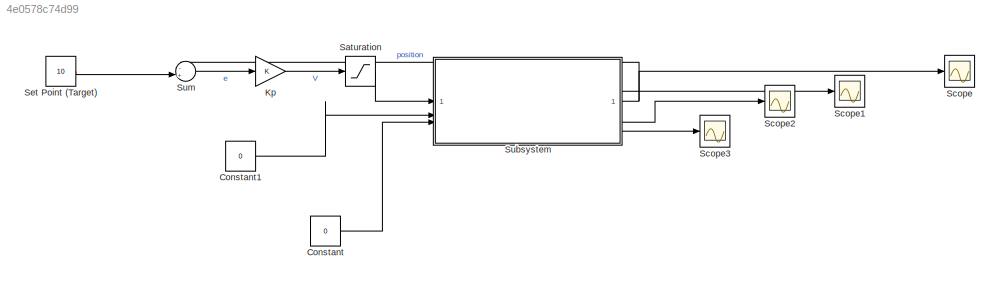
MODEL slx_4e0578c74d99
KIND model
CONFIG AbsTol = auto
CONFIG EnableMultiTasking = off
CONFIG FixedStep = auto
CONFIG InitFcn = %%%%%%%%%%%%%%%%%%%%%%%%%%%%%%%%%%%%%%%%%%%%%%%%%\n%motor parameters\n%we dont know these yet\nJ = 1e-6; %intertia [kg * m^2]\nBm = 1e-6; %kinetic friction [N * m * s]\n\n%from motor datasheet\nKm = 0.011; %motor constant (back emf constant = torque constant)\nRw = 1.17; %motor electric resistance in ohms\nLw = 0.58E-3; %motor inductance in ohms\n\n\n%admittance controller params\n\nK = 1;\nB = 1;\nD = 1;\nM = J;\n...<+52ch>
CONFIG MaxStep = auto
CONFIG MinStep = auto
CONFIG RelTol = 1e-3
CONFIG SampleTimeConstraint = Unconstrained
CONFIG SolverName = VariableStepAuto
CONFIG StartTime = 0.0
CONFIG StopTime = 1
BLOCK [Constant] Constant
  Value = 0
BLOCK [Constant] Constant1
  Value = 0
BLOCK [Gain] Kp
BLOCK [Saturate] Saturation
  LowerLimit = -12
  UpperLimit = 12
BLOCK [Scope] Scope
  Floating = off
  NumInputPorts = 1
  ScopeSpecificationString = Simulink.scopes.TimeScopeBlockCfg('CurrentConfiguration', extmgr.ConfigurationSet(extmgr.Configuration('Core','General UI',true),extmgr.Configuration('Core','Source UI',true),extmgr.Configuration('Sources','WiredSimulink',true),extmgr.Configuration('Visuals','Time Domain',true,'SerializedDisplays',{struct('MinYLimReal','-1.42736','MaxYLimReal','12.84621','YLabelReal','','MinYLimMag','0.00000','Max...<+1361ch>
BLOCK [Scope] Scope1
  Floating = off
  NumInputPorts = 1
  ScopeSpecificationString = Simulink.scopes.TimeScopeBlockCfg('CurrentConfiguration', extmgr.ConfigurationSet(extmgr.Configuration('Core','General UI',true),extmgr.Configuration('Core','Source UI',true),extmgr.Configuration('Sources','WiredSimulink',true,'DataLoggingVariableName','ScopeData1'),extmgr.Configuration('Visuals','Time Domain',true,'SerializedDisplays',{struct('MinYLimReal','-149.56963','MaxYLimReal','604.06701','...<+1431ch>
BLOCK [Scope] Scope2
  Floating = off
  NumInputPorts = 1
  ScopeSpecificationString = Simulink.scopes.TimeScopeBlockCfg('CurrentConfiguration', extmgr.ConfigurationSet(extmgr.Configuration('Core','General UI',true),extmgr.Configuration('Core','Source UI',true),extmgr.Configuration('Sources','WiredSimulink',true,'DataLoggingVariableName','ScopeData2'),extmgr.Configuration('Visuals','Time Domain',true,'SerializedDisplays',{struct('MinYLimReal','-0.04162','MaxYLimReal','0.09713','YLab...<+1399ch>
BLOCK [Scope] Scope3
  Floating = off
  NumInputPorts = 1
  ScopeSpecificationString = Simulink.scopes.TimeScopeBlockCfg('CurrentConfiguration', extmgr.ConfigurationSet(extmgr.Configuration('Core','General UI',true),extmgr.Configuration('Core','Source UI',true),extmgr.Configuration('Sources','WiredSimulink',true,'DataLoggingVariableName','ScopeData3'),extmgr.Configuration('Visuals','Time Domain',true,'SerializedDisplays',{struct('MinYLimReal','-0.04162','MaxYLimReal','0.09713','YLab...<+1402ch>
BLOCK [Constant] Set Point (Target)
  Value = 10
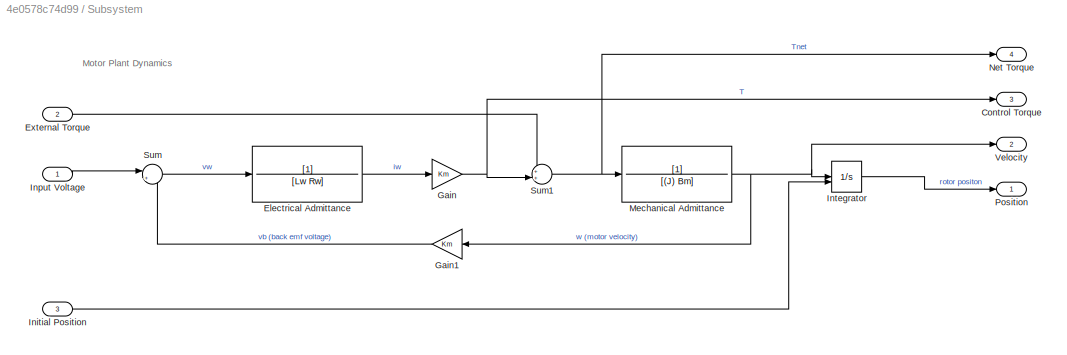
BLOCK [SubSystem] Subsystem
BLOCK [Outport] Subsystem/Control Torque
  Port = 3
BLOCK [TransferFcn] Subsystem/Electrical Admittance
  Denominator = [Lw Rw]
BLOCK [Inport] Subsystem/External Torque
  NameLocation = top
  Port = 2
BLOCK [Gain] Subsystem/Gain
  Gain = Km
BLOCK [Gain] Subsystem/Gain1
  Gain = Km
BLOCK [Inport] Subsystem/Initial Position
  Port = 3
BLOCK [Inport] Subsystem/Input Voltage
BLOCK [Integrator] Subsystem/Integrator
  InitialConditionSource = external
BLOCK [TransferFcn] Subsystem/Mechanical Admittance
  Denominator = [(J) Bm]
BLOCK [Outport] Subsystem/Net Torque
  Port = 4
BLOCK [Outport] Subsystem/Position
BLOCK [Sum] Subsystem/Sum
  Inputs = |+-
BLOCK [Sum] Subsystem/Sum1
  Inputs = ++|
BLOCK [Outport] Subsystem/Velocity
  Port = 2
BLOCK [Sum] Sum
  Inputs = -+|
ANNOTATION Subsystem: Motor Plant Dynamics
LINE Constant1:1 -> Subsystem:2
LINE Constant:1 -> Subsystem:3
LINE Kp:1 -> Saturation:1
LINE Saturation:1 -> Subsystem:1
LINE Set Point (Target):1 -> Sum:2
LINE Subsystem/Electrical Admittance:1 -> Subsystem/Gain:1
LINE Subsystem/External Torque:1 -> Subsystem/Sum1:1
LINE Subsystem/Gain1:1 -> Subsystem/Sum:2
NET Subsystem/Gain:1 -> Subsystem/Control Torque:1, Subsystem/Sum1:2
LINE Subsystem/Initial Position:1 -> Subsystem/Integrator:2
LINE Subsystem/Input Voltage:1 -> Subsystem/Sum:1
LINE Subsystem/Integrator:1 -> Subsystem/Position:1
NET Subsystem/Mechanical Admittance:1 -> Subsystem/Gain1:1, Subsystem/Integrator:1, Subsystem/Velocity:1
NET Subsystem/Sum1:1 -> Subsystem/Mechanical Admittance:1, Subsystem/Net Torque:1
LINE Subsystem/Sum:1 -> Subsystem/Electrical Admittance:1
NET Subsystem:1 -> Scope:1, Sum:1
LINE Subsystem:2 -> Scope1:1
LINE Subsystem:3 -> Scope2:1
LINE Subsystem:4 -> Scope3:1
LINE Sum:1 -> Kp:1
note: NET lines group one-source signal fan-out (src -> all destinations, sorted); 1:1 wires keep LINE
